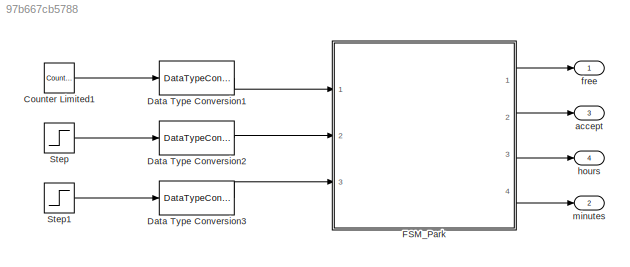
MODEL slx_97b667cb5788
KIND model
CONFIG AbsTol = auto
CONFIG EnableMultiTasking = off
CONFIG FixedStep = auto
CONFIG MaxStep = auto
CONFIG MinStep = auto
CONFIG RelTol = 1e-3
CONFIG SampleTimeConstraint = Unconstrained
CONFIG Solver = VariableStepAuto
CONFIG SolverName = VariableStepAuto
CONFIG StartTime = 0.0
CONFIG StopTime = inf
BLOCK [Reference] Counter Limited1  REF=simulink/Sources/Counter
Limited
  Ports = [0, 1]
  SourceBlock = simulink/Sources/Counter\nLimited
  SourceType = Counter Limited
BLOCK [DataTypeConversion] Data Type Conversion1
  OutDataTypeStr = boolean
  RndMeth = Floor
  SaturateOnIntegerOverflow = off
BLOCK [DataTypeConversion] Data Type Conversion2
  OutDataTypeStr = boolean
  RndMeth = Floor
  SaturateOnIntegerOverflow = off
BLOCK [DataTypeConversion] Data Type Conversion3
  OutDataTypeStr = boolean
  RndMeth = Floor
  SaturateOnIntegerOverflow = off
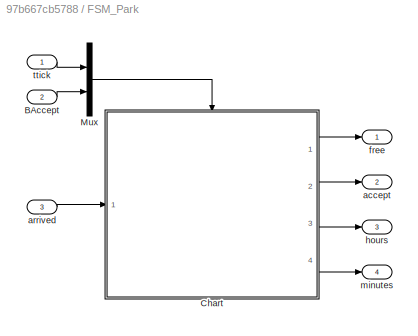
BLOCK [SubSystem] FSM_Park
  Ports = [3, 4]
  RequestExecContextInheritance = off
  Variant = off
BLOCK [Inport] FSM_Park/BAccept
  IconDisplay = Port number
  Port = 2
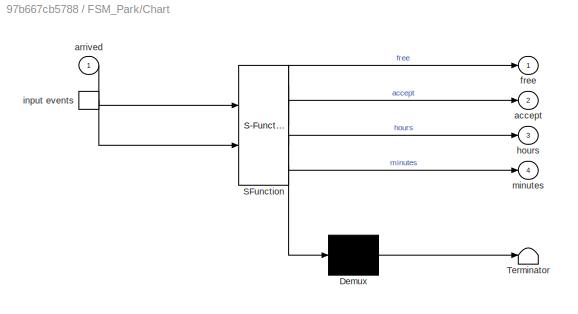
BLOCK [SubSystem] FSM_Park/Chart
  ErrorFcn = Stateflow.Translate.translate
  PermitHierarchicalResolution = ExplicitOnly
  Ports = [1, 4, 0, 1]
  RequestExecContextInheritance = off
  SFBlockType = Chart
  TreatAsAtomicUnit = on
  Variant = off
BLOCK [Demux] FSM_Park/Chart/ Demux 
  Outputs = 1
  Ports = [1, 1]
BLOCK [S-Function] FSM_Park/Chart/ SFunction 
  EnableBusSupport = on
  FunctionName = sf_sfun
  PortCounts = [2 5]
  Ports = [2, 5]
  SFcnIsStateOwnerBlock = off
  SFunctionDeploymentMode = off
  Tag = Stateflow S-Function ParkSensor 3
BLOCK [Terminator] FSM_Park/Chart/ Terminator 
BLOCK [Outport] FSM_Park/Chart/accept
  IconDisplay = Port number
  Port = 2
BLOCK [Inport] FSM_Park/Chart/arrived
  IconDisplay = Port number
BLOCK [Outport] FSM_Park/Chart/free
  IconDisplay = Port number
BLOCK [Outport] FSM_Park/Chart/hours
  IconDisplay = Port number
  Port = 3
BLOCK [TriggerPort] FSM_Park/Chart/input events
  Ports = [0, 1]
  ShowOutputPort = on
  StatesWhenEnabling = held
  VariantControl = Variant
BLOCK [Outport] FSM_Park/Chart/minutes
  IconDisplay = Port number
  Port = 4
BLOCK [Mux] FSM_Park/Mux
  DisplayOption = bar
  Inputs = 2
  Ports = [2, 1]
BLOCK [Outport] FSM_Park/accept
  IconDisplay = Port number
  Port = 2
BLOCK [Inport] FSM_Park/arrived
  IconDisplay = Port number
  Port = 3
BLOCK [Outport] FSM_Park/free
  IconDisplay = Port number
BLOCK [Outport] FSM_Park/hours
  IconDisplay = Port number
  Port = 3
BLOCK [Outport] FSM_Park/minutes
  IconDisplay = Port number
  Port = 4
BLOCK [Inport] FSM_Park/ttick
  IconDisplay = Port number
BLOCK [Step] Step
  SampleTime = 0.1
BLOCK [Step] Step1
  SampleTime = 0.1
  Time = 2
BLOCK [Outport] accept
  IconDisplay = Port number
  Port = 3
BLOCK [Outport] free
  IconDisplay = Port number
BLOCK [Outport] hours
  IconDisplay = Port number
  Port = 4
BLOCK [Outport] minutes
  IconDisplay = Port number
  Port = 2
LINE Counter Limited1:1 -> Data Type Conversion1:1
LINE Data Type Conversion1:1 -> FSM_Park:1
LINE Data Type Conversion2:1 -> FSM_Park:2
LINE Data Type Conversion3:1 -> FSM_Park:3
LINE FSM_Park/BAccept:1 -> FSM_Park/Mux:2
LINE FSM_Park/Chart:1 -> FSM_Park/free:1
LINE FSM_Park/Chart:2 -> FSM_Park/accept:1
LINE FSM_Park/Chart:3 -> FSM_Park/hours:1
LINE FSM_Park/Chart:4 -> FSM_Park/minutes:1
LINE FSM_Park/Mux:1 -> FSM_Park/Chart:trigger
LINE FSM_Park/arrived:1 -> FSM_Park/Chart:1
LINE FSM_Park/ttick:1 -> FSM_Park/Mux:1
LINE FSM_Park:1 -> free:1
LINE FSM_Park:2 -> accept:1
LINE FSM_Park:3 -> hours:1
LINE FSM_Park:4 -> minutes:1
LINE Step1:1 -> Data Type Conversion3:1
LINE Step:1 -> Data Type Conversion2:1
CHART FSM_Park/Chart states=7 transitions=14
  STATE_LABEL 'control'
  STATE_LABEL 'Free\n'
  STATE_LABEL 'Accept_Arrivals\nen: accept = true\nex: accept = false\n'
  STATE_LABEL 'Parked\nen: free = false'
  STATE_LABEL 'Accept_Departure\nen: accept = true;\nex: accept = false;\n free = true;\n'
  STATE_LABEL '{free = true; accept = false}'
  STATE_LABEL '[arrived==true]'
  STATE_LABEL '[arrived == false]'
  STATE_LABEL 'BAccept[arrived == true]'
  STATE_LABEL 'BAccept/{hours = uint8(0);\nminutes = uint8(0)}'
  STATE_LABEL 'BAccept/{hours = uint8(0);\nminutes = uint8(0)}'
  STATE_LABEL '[arrived==false]'
  STATE_LABEL 'Free\n'
  STATE_LABEL 'Accept_Arrivals\nen: accept = true\nex: accept = false\n'
  STATE_LABEL 'Parked\nen: free = false'
  STATE_LABEL 'Accept_Departure\nen: accept = true;\nex: accept = false;\n free = true;\n'
  STATE_LABEL 'time\n'
  STATE_LABEL 'timecount'
  STATE_LABEL '/{hours=uint8(0);minutes=uint8(0);seconds=uint8(0);}'
  STATE_LABEL 'ttick {seconds=mod(seconds+1,60)}'
  STATE_LABEL '[seconds==0]{minutes=mod(minutes+1, 60)}'
  STATE_LABEL '[minutes==0]{hours=mod(hours+1,24)}'
  STATE_LABEL 'timecount'
